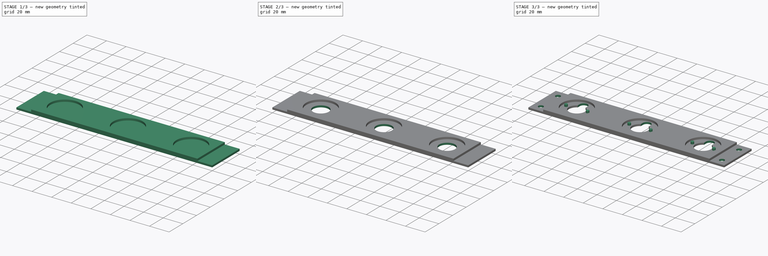
[diagram: build sequence overview — one tinted view per stage of 3, left to right]
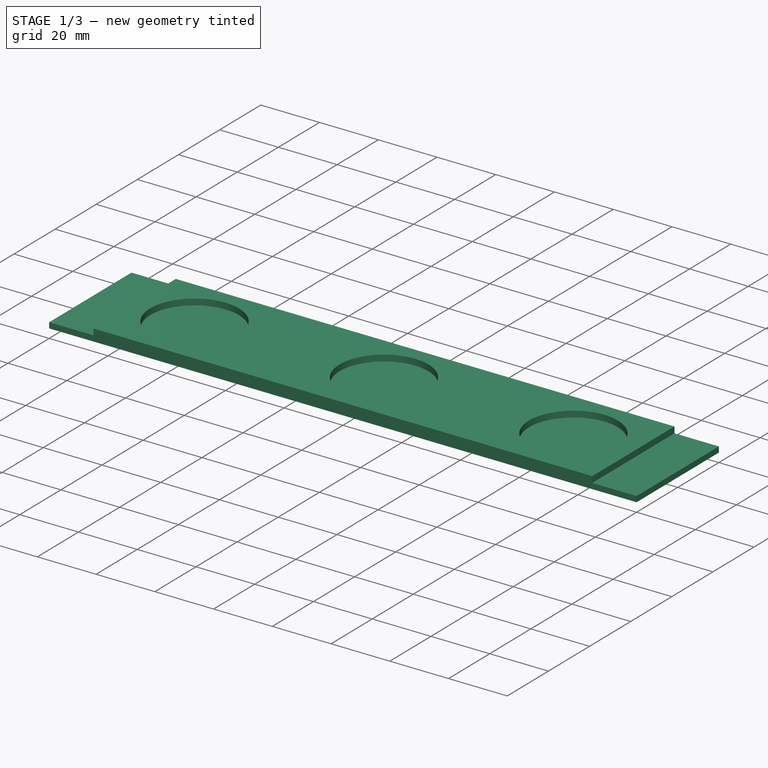
[diagram: stage 1 of 3 — iso view after this stage's code; geometry added in this stage tinted green]
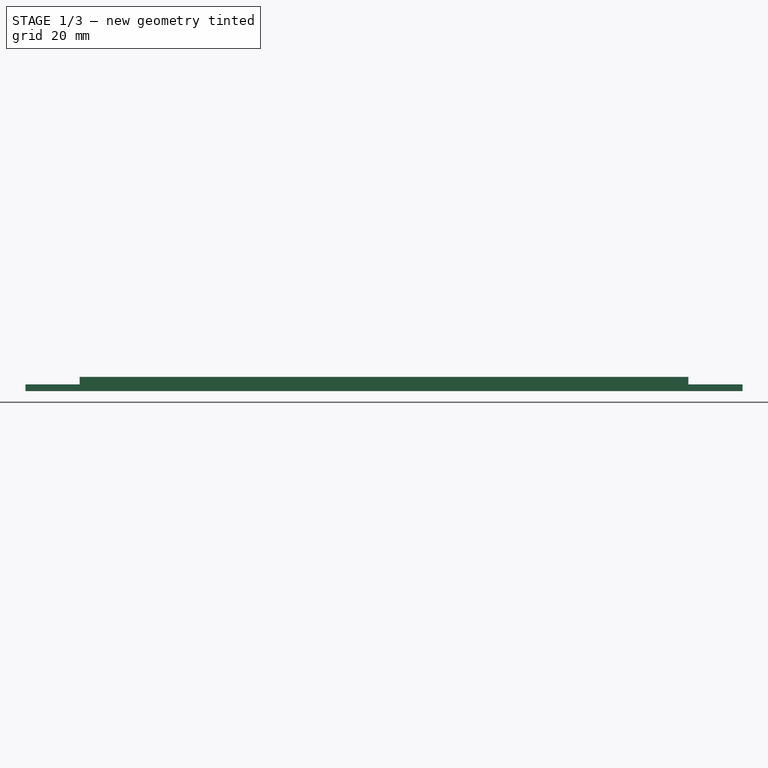
[diagram: stage 1 of 3 — front view after this stage's code; geometry added in this stage tinted green]
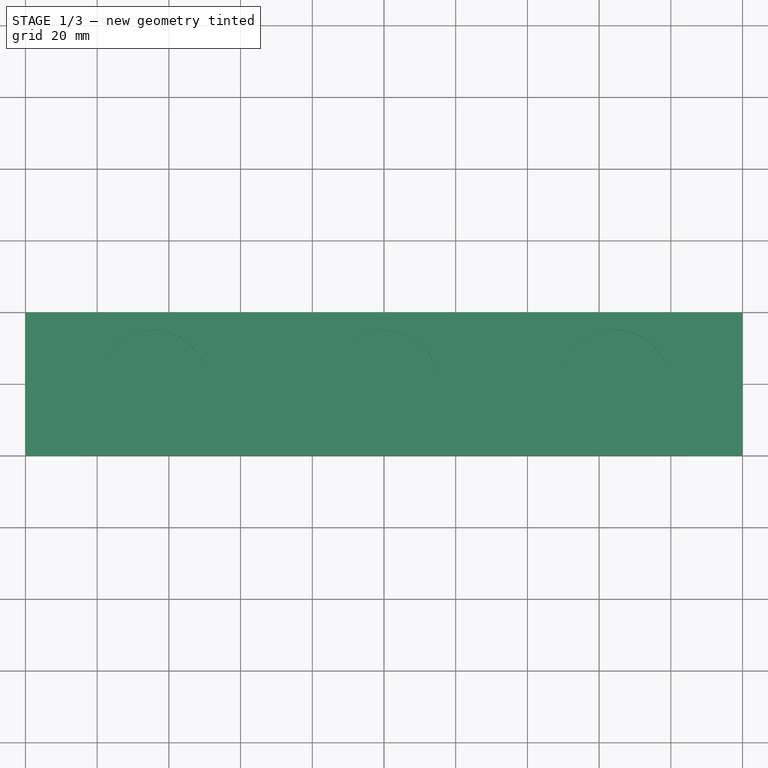
[diagram: stage 1 of 3 — top view after this stage's code; geometry added in this stage tinted green]
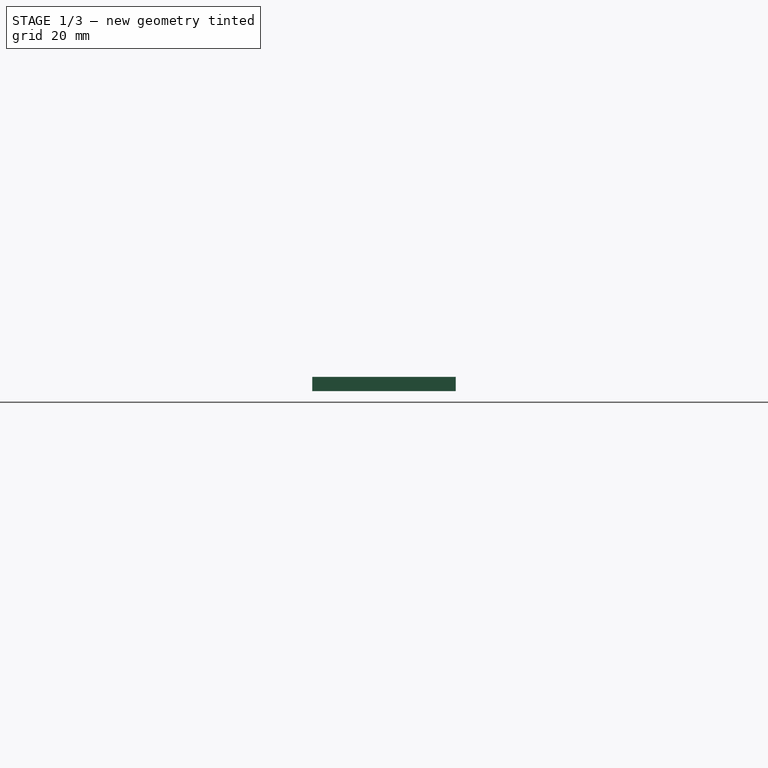
[diagram: stage 1 of 3 — right view after this stage's code; geometry added in this stage tinted green]
FCSTD DOCUMENT  (FreeCAD 0.20R29410 (Git))
Label: VDCS-BP3
License: All rights reserved
LicenseURL: http://en.wikipedia.org/wiki/All_rights_reserved
objects: Sketcher::SketchObject×5, PartDesign::Pocket×3, PartDesign::Pad×2, PartDesign::Body×1
note: 16 computed .brp shape members not serialized (recipe doc carries the construction recipe); baked Part::Feature solids carry a one-line shape summary decoded from their .brp

FEATURE [Sketcher::SketchObject] Sketch
  FullyConstrained = true
  MapMode = 5
  Support = -> [XY_Plane]
  sketch-geometry (4):
    g0: LineSegment StartX=-100 StartY=20 StartZ=0 EndX=100 EndY=20 EndZ=0
    g1: LineSegment StartX=100 StartY=20 StartZ=0 EndX=100 EndY=-20 EndZ=0
    g2: LineSegment StartX=100 StartY=-20 StartZ=0 EndX=-100 EndY=-20 EndZ=0
    g3: LineSegment StartX=-100 StartY=-20 StartZ=0 EndX=-100 EndY=20 EndZ=0
  constraints (11):
    c: Coincident(g0,g1)
    c: Coincident(g1,g2)
    c: Coincident(g2,g3)
    c: Coincident(g3,g0)
    c: Horizontal(g0)
    c: Horizontal(g2)
    c: Vertical(g1)
    c: Vertical(g3)
    c: DistanceX(g0,g0) = 200
    c: DistanceY(g3,g3) = 40
    c: Symmetric(g0,g2,g-1)
FEATURE [PartDesign::Pad] Pad  label="Base Plate"
  Direction = (0,0,1)
  Length = 4
  Length2 = 100
  Profile = -> Sketch
  Type = 0
FEATURE [Sketcher::SketchObject] Sketch001
  FullyConstrained = true
  MapMode = 5
  Placement = pos=(0,0,4) rot=(0,0,1;0rad)
  Support = -> [Pad]
  sketch-geometry (11):
    g0: Circle CenterX=0 CenterY=0 CenterZ=0 NormalX=0 NormalY=0 NormalZ=1 AngleXU=0 Radius=15.1
    g1: Circle CenterX=64.5 CenterY=0 CenterZ=0 NormalX=0 NormalY=0 NormalZ=1 AngleXU=0 Radius=15.1
    g2: Circle CenterX=-64.5 CenterY=0 CenterZ=0 NormalX=0 NormalY=0 NormalZ=1 AngleXU=0 Radius=15.1
    g3: LineSegment StartX=100 StartY=20 StartZ=0 EndX=84.9 EndY=20 EndZ=0
    g4: LineSegment StartX=84.9 StartY=20 StartZ=0 EndX=84.9 EndY=-20 EndZ=0
    g5: LineSegment StartX=84.9 StartY=-20 StartZ=0 EndX=100 EndY=-20 EndZ=0
    g6: LineSegment StartX=100 StartY=-20 StartZ=0 EndX=100 EndY=20 EndZ=0
    g7: LineSegment StartX=-84.9 StartY=20 StartZ=0 EndX=-100 EndY=20 EndZ=0
    g8: LineSegment StartX=-100 StartY=20 StartZ=0 EndX=-100 EndY=-20 EndZ=0
    g9: LineSegment StartX=-100 StartY=-20 StartZ=0 EndX=-84.9 EndY=-20 EndZ=0
    g10: LineSegment StartX=-84.9 StartY=-20 StartZ=0 EndX=-84.9 EndY=20 EndZ=0
  constraints (29):
    c: Diameter(g0) = 30.2
    c: Coincident(g0,g-1)
    c: Equal(g0,g1) = 31
    c: PointOnObject(g1,g-1)
    c: Equal(g0,g2) = 31
    c: Symmetric(g2,g1,g0)
    c: DistanceX(g2,g0) = 64.5
    c: Coincident(g3,g4)
    c: Coincident(g4,g5)
    c: Coincident(g5,g6)
    c: Coincident(g6,g3)
    c: Horizontal(g3)
    c: Horizontal(g5)
    c: Vertical(g4)
    c: DistanceY(g6,g6) = 40
    c: DistanceX(g3,g3) = 15.1
    c: Symmetric(g3,g5,g-1)
    c: Coincident(g7,g8)
    c: Coincident(g8,g9)
    c: Coincident(g9,g10)
    c: Coincident(g10,g7)
    c: Horizontal(g7)
    c: Horizontal(g9)
    c: Vertical(g8)
    c: Equal(g6,g10) = 40
    c: Equal(g3,g7) = 20
    c: Vertical(g10)
    c: DistanceX(g8,g5) = 200
    c: Symmetric(g5,g8,g-2)
FEATURE [PartDesign::Pocket] Pocket  label="Cell Base and Side Pockets"
  BaseFeature = -> Pad
  Direction = (0,0,-1)
  Length = 2.1
  Length2 = 100
  Profile = -> Sketch001
  Type = 0
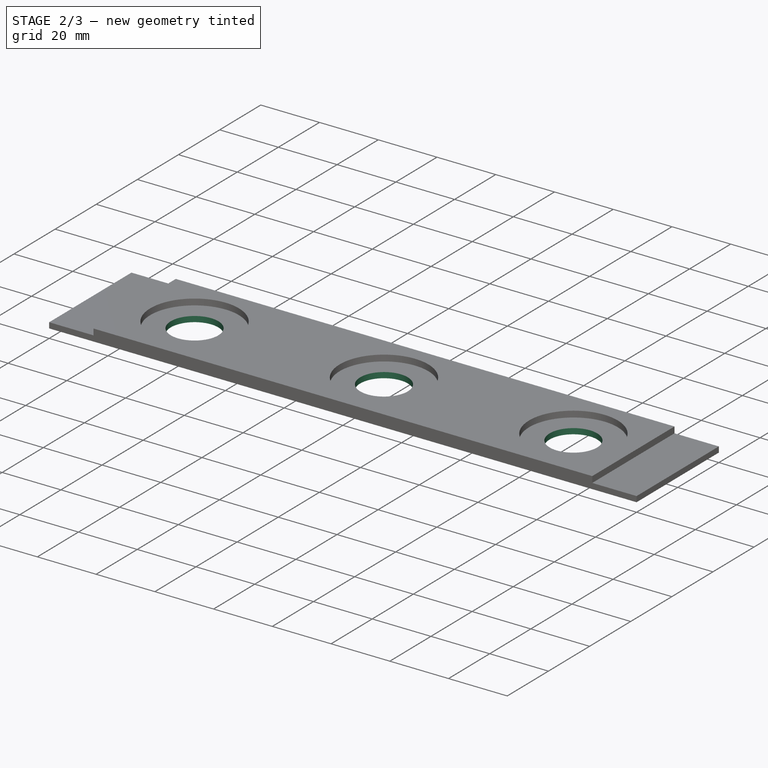
[diagram: stage 2 of 3 — iso view after this stage's code; geometry added in this stage tinted green]
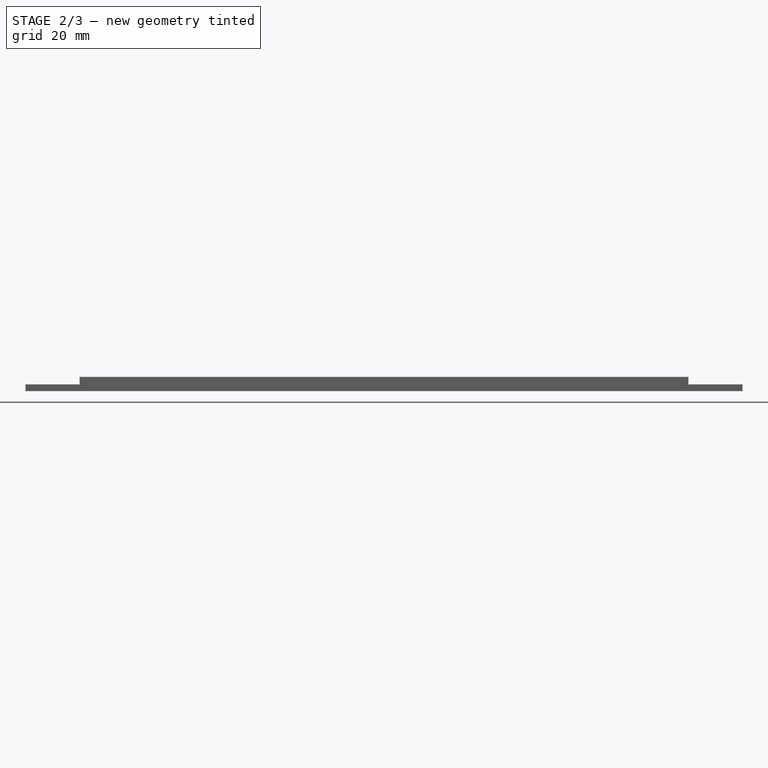
[diagram: stage 2 of 3 — front view after this stage's code; geometry added in this stage tinted green]
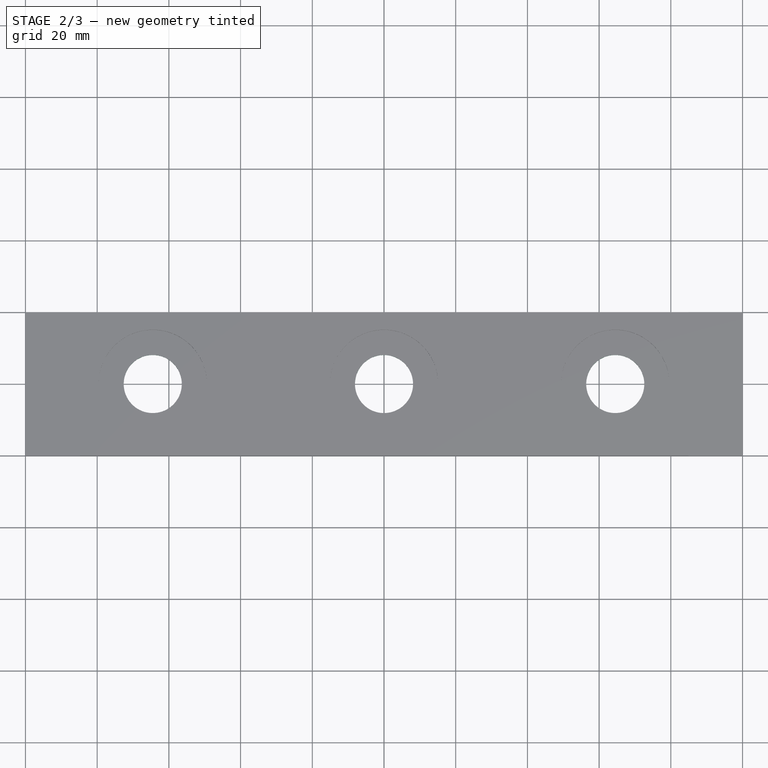
[diagram: stage 2 of 3 — top view after this stage's code; geometry added in this stage tinted green]
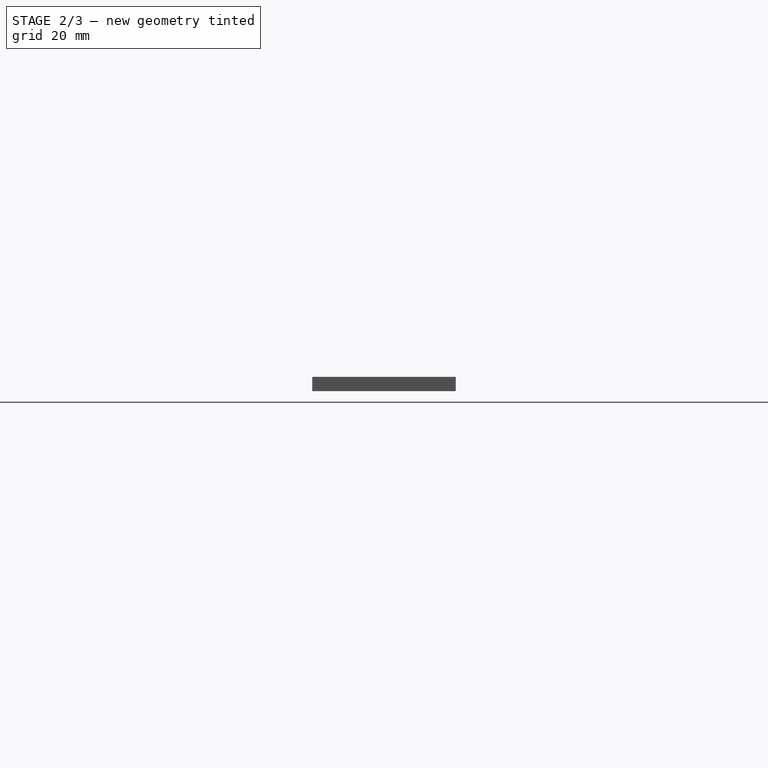
[diagram: stage 2 of 3 — right view after this stage's code; geometry added in this stage tinted green]
FEATURE [Sketcher::SketchObject] Sketch002
  FullyConstrained = true
  MapMode = 5
  Placement = pos=(0,0,1.9) rot=(0,0,1;0rad)
  Support = -> [Pocket]
  sketch-geometry (3):
    g0: Circle CenterX=0 CenterY=0 CenterZ=0 NormalX=0 NormalY=0 NormalZ=1 AngleXU=0 Radius=8.1
    g1: Circle CenterX=64.5 CenterY=0 CenterZ=0 NormalX=0 NormalY=0 NormalZ=1 AngleXU=0 Radius=8.1
    g2: Circle CenterX=-64.5 CenterY=0 CenterZ=0 NormalX=0 NormalY=0 NormalZ=1 AngleXU=0 Radius=8.1
  constraints (7):
    c: Coincident(g0,g-1)
    c: Diameter(g0) = 16.2
    c: Equal(g0,g1) = 16.2
    c: PointOnObject(g1,g-1)
    c: Equal(g0,g2) = 16.2
    c: Symmetric(g1,g2,g0)
    c: DistanceX(g2,g0) = 64.5
FEATURE [PartDesign::Pocket] Pocket001  label="Centre Hole"
  BaseFeature = -> Pocket
  Direction = (0,0,-1)
  Length = 5
  Length2 = 100
  Profile = -> Sketch002
  Type = 1
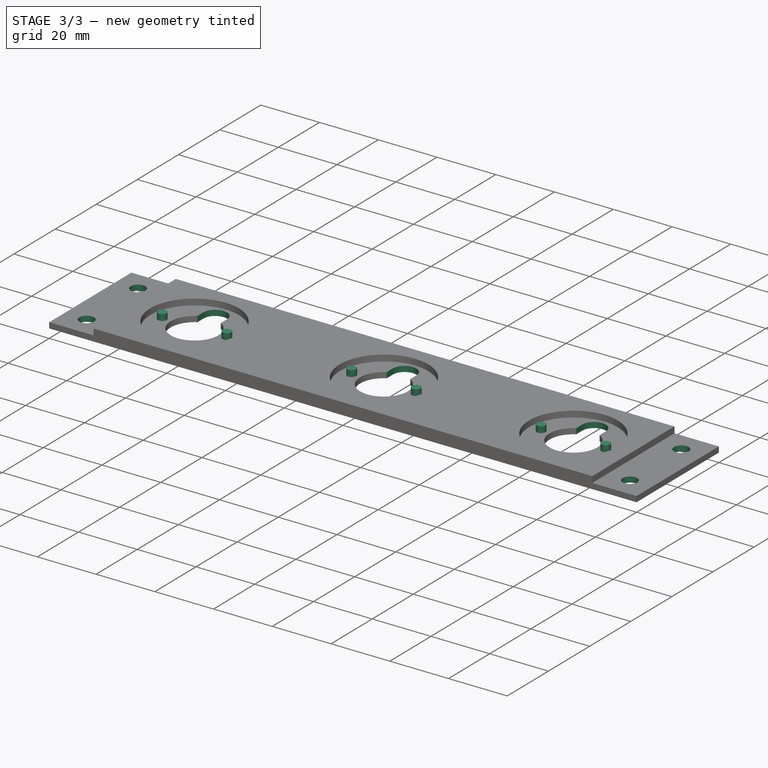
[diagram: stage 3 of 3 — iso view after this stage's code; geometry added in this stage tinted green]
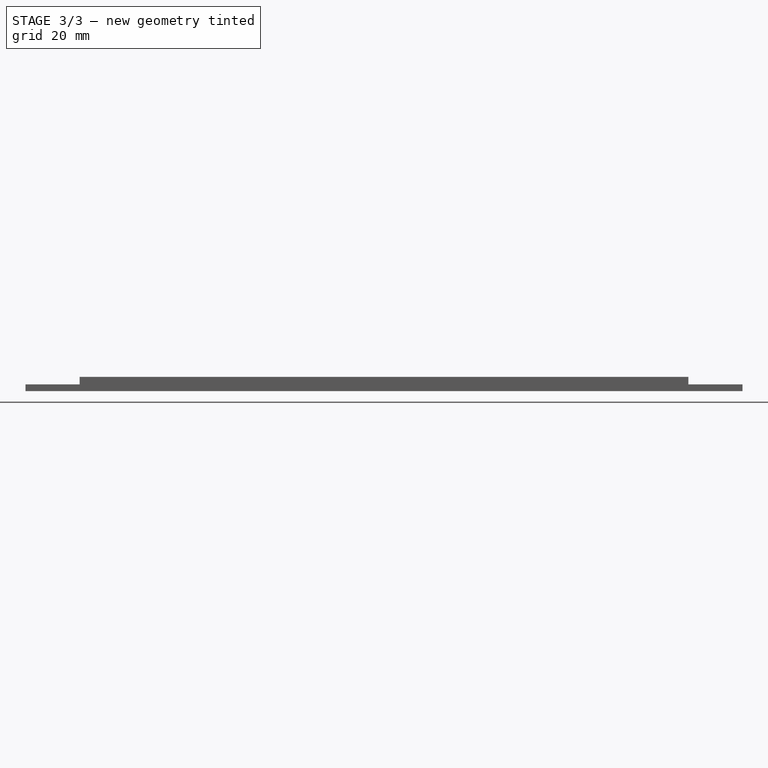
[diagram: stage 3 of 3 — front view after this stage's code; geometry added in this stage tinted green]
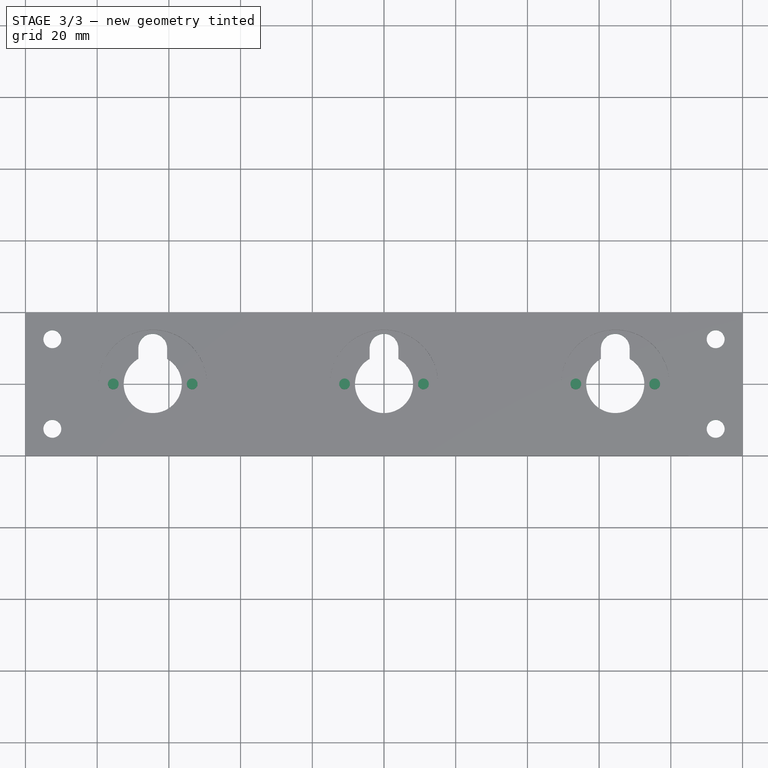
[diagram: stage 3 of 3 — top view after this stage's code; geometry added in this stage tinted green]
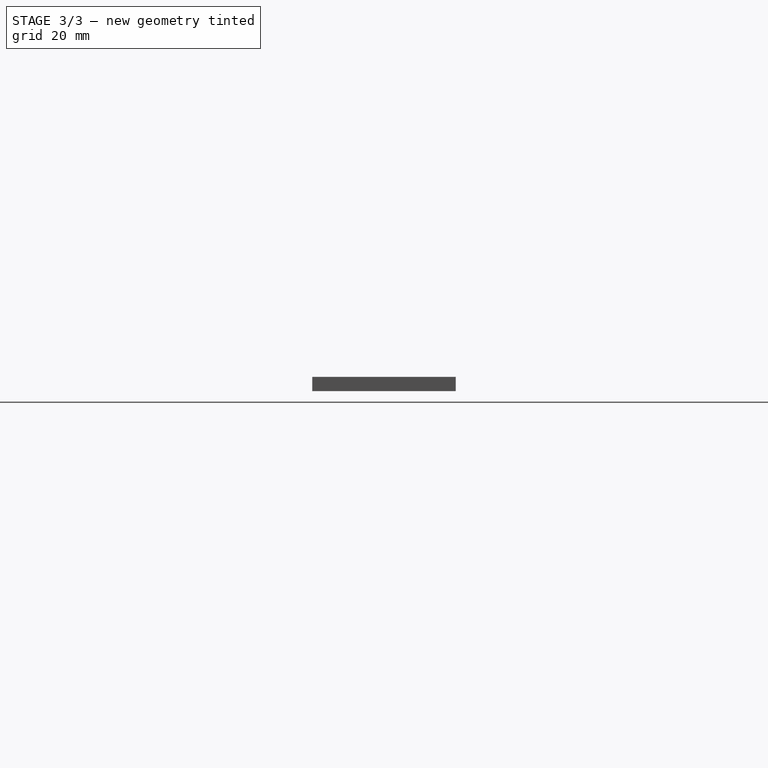
[diagram: stage 3 of 3 — right view after this stage's code; geometry added in this stage tinted green]
FEATURE [Sketcher::SketchObject] Sketch003
  FullyConstrained = true
  MapMode = 5
  Placement = pos=(0,0,1.9) rot=(0,0,1;0rad)
  Support = -> [Pocket001]
  sketch-geometry (16):
    g0: ArcOfCircle CenterX=-2.48e-14 CenterY=10 CenterZ=0 NormalX=0 NormalY=0 NormalZ=1 AngleXU=0 Radius=4 StartAngle=2.5e-15 EndAngle=3.14159
    g1: ArcOfCircle CenterX=0 CenterY=0 CenterZ=0 NormalX=0 NormalY=0 NormalZ=1 AngleXU=0 Radius=4 StartAngle=3.14159 EndAngle=6.28319
    g2: LineSegment StartX=-4 StartY=10 StartZ=0 EndX=-4 EndY=0 EndZ=0
    g3: LineSegment StartX=4 StartY=10 StartZ=0 EndX=4 EndY=8.9e-15 EndZ=0
    g4: ArcOfCircle CenterX=64.5 CenterY=10 CenterZ=0 NormalX=0 NormalY=0 NormalZ=1 AngleXU=0 Radius=4 StartAngle=0 EndAngle=3.14159
    g5: ArcOfCircle CenterX=64.5 CenterY=0 CenterZ=0 NormalX=0 NormalY=0 NormalZ=1 AngleXU=0 Radius=4 StartAngle=3.14159 EndAngle=6.28319
    g6: LineSegment StartX=60.5 StartY=10 StartZ=0 EndX=60.5 EndY=0 EndZ=0
    g7: LineSegment StartX=68.5 StartY=10 StartZ=0 EndX=68.5 EndY=-1.8e-15 EndZ=0
    g8: ArcOfCircle CenterX=-64.5 CenterY=10 CenterZ=0 NormalX=0 NormalY=0 NormalZ=1 AngleXU=0 Radius=4 StartAngle=3.7e-15 EndAngle=3.14159
    g9: ArcOfCircle CenterX=-64.5 CenterY=0 CenterZ=0 NormalX=0 NormalY=0 NormalZ=1 AngleXU=0 Radius=4 StartAngle=3.14159 EndAngle=6.28319
    g10: LineSegment StartX=-68.5 StartY=10 StartZ=0 EndX=-68.5 EndY=-2.49e-14 EndZ=0
    g11: LineSegment StartX=-60.5 StartY=10 StartZ=0 EndX=-60.5 EndY=1.24e-14 EndZ=0
    g12: Circle CenterX=-92.5 CenterY=12.5 CenterZ=0 NormalX=0 NormalY=0 NormalZ=1 AngleXU=0 Radius=2.5
    g13: Circle CenterX=-92.5 CenterY=-12.5 CenterZ=0 NormalX=0 NormalY=0 NormalZ=1 AngleXU=0 Radius=2.5
    g14: Circle CenterX=92.5 CenterY=-12.5 CenterZ=0 NormalX=0 NormalY=0 NormalZ=1 AngleXU=0 Radius=2.5
    g15: Circle CenterX=92.5 CenterY=12.5 CenterZ=0 NormalX=0 NormalY=0 NormalZ=1 AngleXU=0 Radius=2.5
  constraints (38):
    c: Tangent(g0,g3) = 1.5708
    c: Tangent(g0,g2) = -1.5708
    c: Tangent(g2,g1) = -1.5708
    c: Tangent(g3,g1) = 1.5708
    c: Vertical(g2)
    c: Equal(g0,g1)
    c: Coincident(g1,g-1)
    c: DistanceX(g1,g1) = 8
    c: DistanceY(g1,g0) = 10
    c: Tangent(g4,g7) = 1.5708
    c: Tangent(g4,g6) = -1.5708
    c: Tangent(g6,g5) = -1.5708
    c: Tangent(g7,g5) = 1.5708
    c: Vertical(g6)
    c: Equal(g4,g5)
    c: Equal(g1,g5) = 8
    c: Tangent(g8,g11) = 1.5708
    c: Tangent(g8,g10) = -1.5708
    c: Tangent(g10,g9) = -1.5708
    c: Tangent(g11,g9) = 1.5708
    c: Vertical(g10)
    c: Equal(g8,g9)
    c: Equal(g1,g9) = 8
    c: Symmetric(g9,g5,g1)
    c: DistanceX(g9,g1) = 64.5
    c: DistanceY(g1,g5) = 0
    c: Diameter(g12) = 5
    c: Equal(g12,g13) = 5
    c: Equal(g12,g14) = 5
    c: Equal(g12,g15) = 5
    c: Symmetric(g12,g14,g1)
    c: Symmetric(g13,g15,g1)
    c: Vertical(g12,g13)
    c: Horizontal(g12,g15)
    c: DistanceX(g13,g14) = 185
    c: DistanceY(g13,g12) = 25
    c: Equal(g6,g2)
    c: Equal(g10,g2)
FEATURE [PartDesign::Pocket] Pocket002  label="Side Alignment Pins and Sampling Arm Base"
  BaseFeature = -> Pocket001
  Direction = (0,0,-1)
  Length = 5
  Length2 = 100
  Profile = -> Sketch003
  Type = 1
FEATURE [Sketcher::SketchObject] Sketch004
  FullyConstrained = true
  MapMode = 5
  Placement = pos=(0,0,1.9) rot=(0,0,1;0rad)
  Support = -> [Pocket002]
  sketch-geometry (6):
    g0: Circle CenterX=-75.5 CenterY=0 CenterZ=0 NormalX=0 NormalY=0 NormalZ=1 AngleXU=0 Radius=1.5
    g1: Circle CenterX=-53.5 CenterY=0 CenterZ=0 NormalX=0 NormalY=0 NormalZ=1 AngleXU=0 Radius=1.5
    g2: Circle CenterX=-11 CenterY=0 CenterZ=0 NormalX=0 NormalY=0 NormalZ=1 AngleXU=0 Radius=1.5
    g3: Circle CenterX=11 CenterY=0 CenterZ=0 NormalX=0 NormalY=0 NormalZ=1 AngleXU=0 Radius=1.5
    g4: Circle CenterX=53.5 CenterY=0 CenterZ=0 NormalX=0 NormalY=0 NormalZ=1 AngleXU=0 Radius=1.5
    g5: Circle CenterX=75.5 CenterY=0 CenterZ=0 NormalX=0 NormalY=0 NormalZ=1 AngleXU=0 Radius=1.5
  constraints (15):
    c: DistanceX(g4,g5) = 22
    c: DistanceX(g2,g3) = 22
    c: Symmetric(g3,g2,g-2)
    c: PointOnObject(g3,g-1)
    c: PointOnObject(g5,g-1)
    c: Horizontal(g4,g5)
    c: Equal(g5,g4)
    c: Equal(g5,g3)
    c: Equal(g5,g2)
    c: Equal(g5,g1)
    c: Equal(g5,g0)
    c: Diameter(g5) = 3
    c: Symmetric(g0,g5,g-2)
    c: Symmetric(g1,g4,g-2)
    c: DistanceX(g1,g-1) = 53.5
FEATURE [PartDesign::Pad] Pad001
  BaseFeature = -> Pocket002
  Direction = (0,0,1)
  Length = 2.1
  Length2 = 10
  Profile = -> Sketch004
  ReferenceAxis = -> Sketch004 [N_Axis]
  Type = 0
FEATURE [PartDesign::Body] Body
  Group = -> [Sketch,Pad,Sketch001,Pocket,Sketch002,Pocket001,Sketch003,Pocket002,Sketch004,Pad001]
  Origin = -> Origin
  Tip = -> Pad001
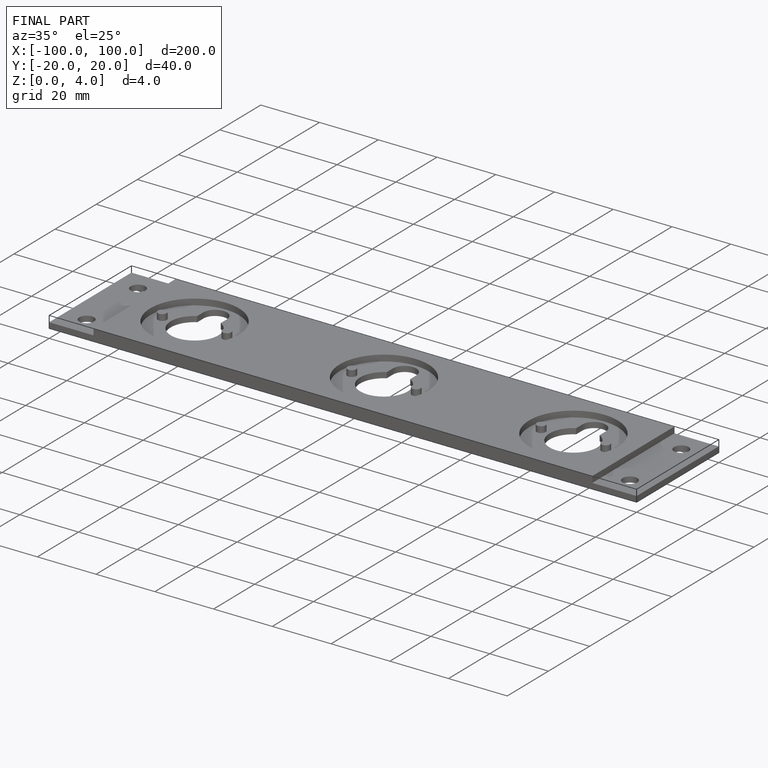
[diagram: finished part — iso view with bounding-box wireframe]
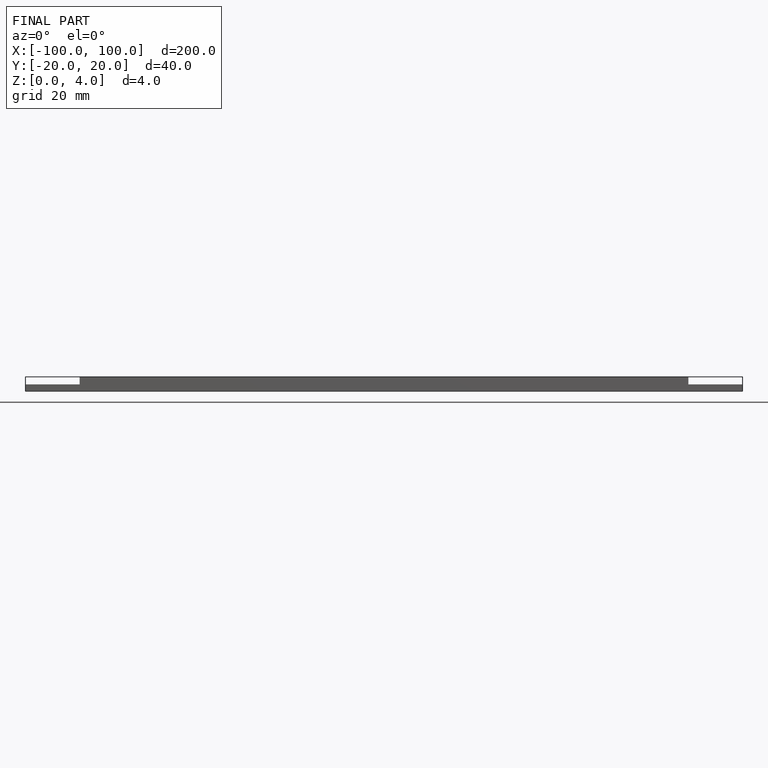
[diagram: finished part — front view with bounding-box wireframe]
